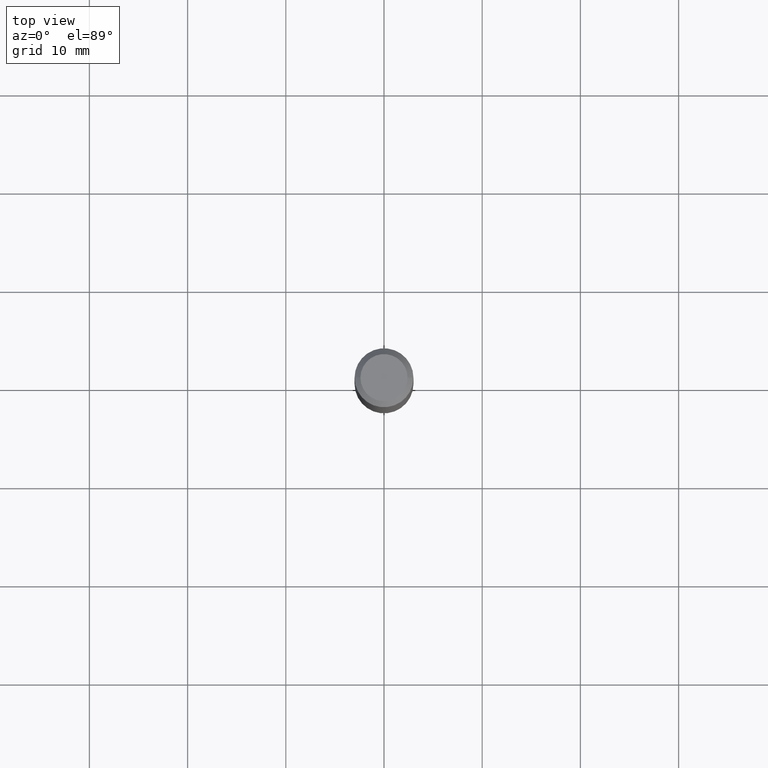
[diagram: clean part render]
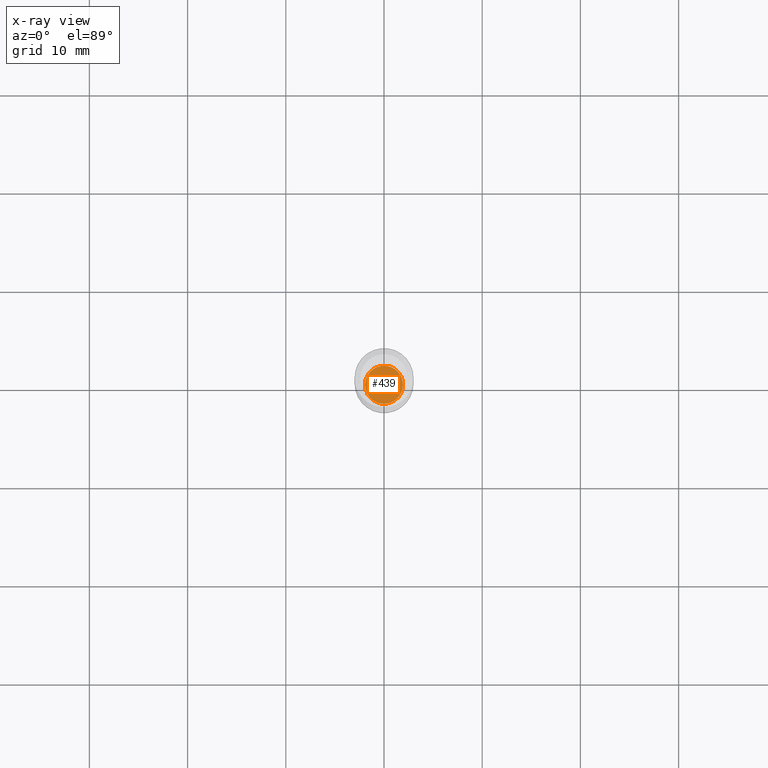
[diagram: x-ray — body ghosted, one internal face saturated and labeled with its STEP entity id]
A machine part, top view, then the same camera in x-ray: the body is ghosted and one INTERNAL B-rep face — a face not visible from any outside direction — is saturated and labeled: STEP entity #439.
In plain terms, the highlighted planar face has unit normal (-0, 0, 1).
Its self-contained STEP definition (entity closure, byte-faithful):
#34 = DIRECTION ( 'NONE',  ( 1.000000000000000000, -6.982962677686265133E-15, 0.000000000000000000 ) ) ;
#59 = AXIS2_PLACEMENT_3D ( 'NONE', #427, #76, #464 ) ;
#76 = DIRECTION ( 'NONE',  ( -2.438088387897960049E-29, 3.491481338843145188E-15, 1.000000000000000000 ) ) ;
#82 = AXIS2_PLACEMENT_3D ( 'NONE', #287, #294, #484 ) ;
#122 = VERTEX_POINT ( 'NONE', #171 ) ;
#162 = ORIENTED_EDGE ( 'NONE', *, *, #343, .F. ) ;
#171 = CARTESIAN_POINT ( 'NONE',  ( 0.07625000000000001221, -6.291998520729230865E-15, -1.649600000000000177 ) ) ;
#172 = CIRCLE ( 'NONE', #244, 0.07625000000000001221 ) ;
#196 = CIRCLE ( 'NONE', #82, 0.07625000000000001221 ) ;
#209 = EDGE_LOOP ( 'NONE', ( #219, #162 ) ) ;
#219 = ORIENTED_EDGE ( 'NONE', *, *, #309, .F. ) ;
#244 = AXIS2_PLACEMENT_3D ( 'NONE', #448, #379, #34 ) ;
#262 = VERTEX_POINT ( 'NONE', #406 ) ;
#287 = CARTESIAN_POINT ( 'NONE',  ( 4.034045342683001816E-29, -5.759547616555652555E-15, -1.649600000000000177 ) ) ;
#294 = DIRECTION ( 'NONE',  ( -2.445468806185136597E-29, 3.491481338843145583E-15, 1.000000000000000000 ) ) ;
#309 = EDGE_CURVE ( 'NONE', #122, #262, #172, .T. ) ;
#343 = EDGE_CURVE ( 'NONE', #262, #122, #196, .T. ) ;
#344 = FACE_OUTER_BOUND ( 'NONE', #209, .T. ) ;
#379 = DIRECTION ( 'NONE',  ( -2.445468806185136597E-29, 3.491481338843145583E-15, 1.000000000000000000 ) ) ;
#406 = CARTESIAN_POINT ( 'NONE',  ( -0.07625000000000001221, -5.215109553364465467E-15, -1.649600000000000177 ) ) ;
#427 = CARTESIAN_POINT ( 'NONE',  ( 4.034045342683001816E-29, -5.759547616555652555E-15, -1.649600000000000177 ) ) ;
#439 = ADVANCED_FACE ( 'NONE', ( #344 ), #460, .F. ) ;
#448 = CARTESIAN_POINT ( 'NONE',  ( 4.034045342683001816E-29, -5.759547616555652555E-15, -1.649600000000000177 ) ) ;
#460 = PLANE ( 'NONE',  #59 ) ;
#464 = DIRECTION ( 'NONE',  ( 1.000000000000000000, -6.982962677686265922E-15, 4.876176775795935793E-29 ) ) ;
#484 = DIRECTION ( 'NONE',  ( 1.000000000000000000, -6.982962677686265133E-15, 0.000000000000000000 ) ) ;